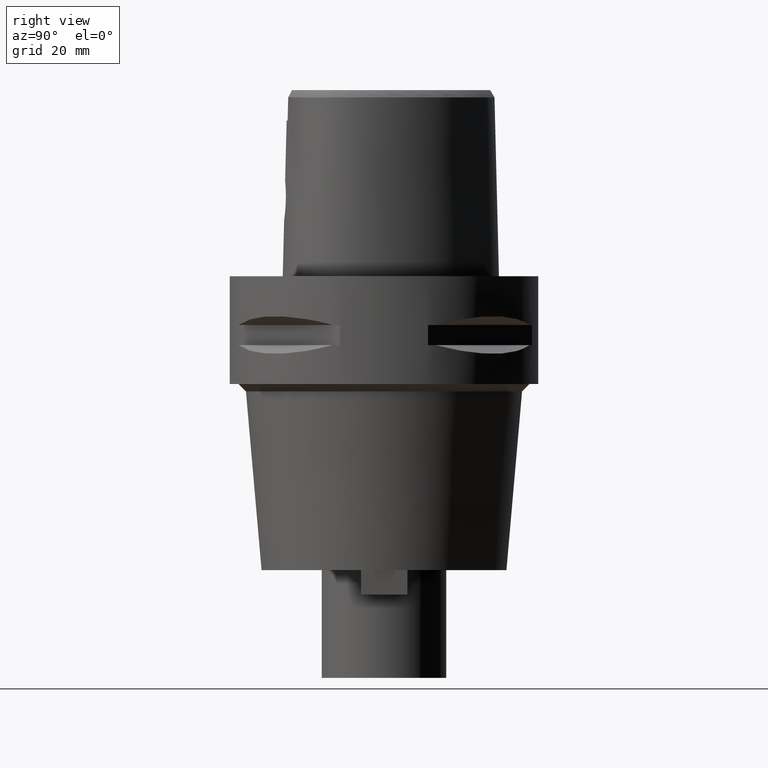
[diagram: clean part render]
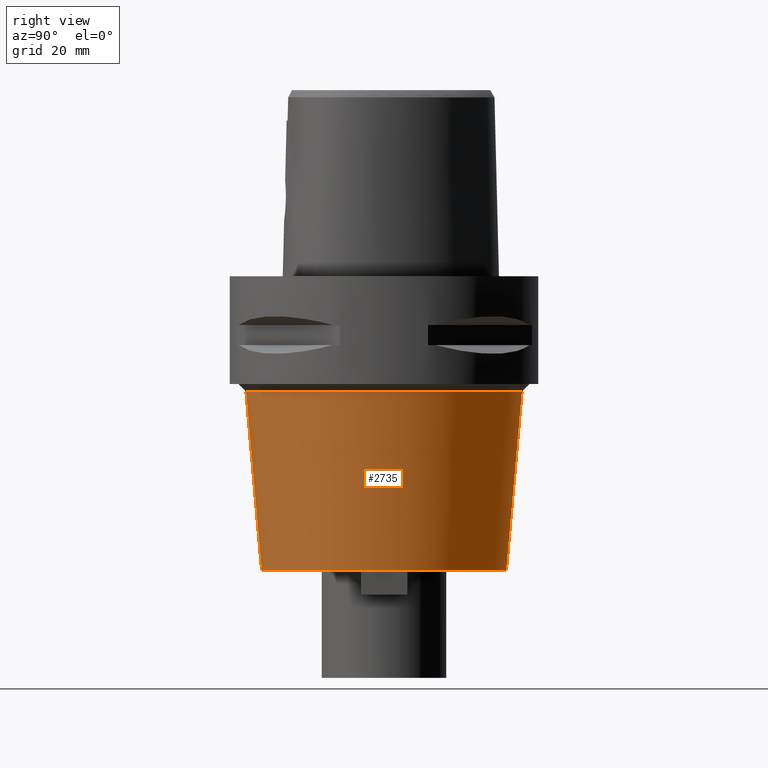
[diagram: same view with one face highlighted and labeled with its STEP entity id]
A machine part, right view. The second image highlights one B-rep face of the part: STEP entity #2735.
In plain terms, the highlighted conical surface has half-angle 5 deg.
Its self-contained STEP definition (entity closure, byte-faithful):
#567=DIRECTION('',(0.E0,-8.715574274770E-2,-9.961946980917E-1));
#568=VECTOR('',#567,3.663942407033E1);
#569=CARTESIAN_POINT('',(0.E0,2.819333621870E1,-2.35E1));
#570=LINE('',#569,#568);
#574=CARTESIAN_POINT('',(0.E0,0.E0,-2.35E1));
#575=DIRECTION('',(0.E0,0.E0,1.E0));
#576=DIRECTION('',(0.E0,-1.E0,0.E0));
#577=AXIS2_PLACEMENT_3D('',#574,#575,#576);
#582=DIRECTION('',(0.E0,8.715574274770E-2,-9.961946980917E-1));
#583=VECTOR('',#582,3.663942407033E1);
#584=CARTESIAN_POINT('',(0.E0,-2.819333621870E1,-2.35E1));
#585=LINE('',#584,#583);
#589=CARTESIAN_POINT('',(0.E0,0.E0,-6.E1));
#590=DIRECTION('',(0.E0,0.E0,1.E0));
#591=DIRECTION('',(0.E0,-1.E0,0.E0));
#592=AXIS2_PLACEMENT_3D('',#589,#590,#591);
#1770=CARTESIAN_POINT('',(0.E0,2.819333621870E1,-2.35E1));
#1771=VERTEX_POINT('',#1770);
#1772=CARTESIAN_POINT('',(0.E0,-2.819333621870E1,-2.35E1));
#1773=VERTEX_POINT('',#1772);
#1774=CARTESIAN_POINT('',(0.E0,2.5E1,-6.E1));
#1775=VERTEX_POINT('',#1774);
#1776=CARTESIAN_POINT('',(0.E0,-2.5E1,-6.E1));
#1777=VERTEX_POINT('',#1776);
#2721=CARTESIAN_POINT('',(0.E0,0.E0,-4.175E1));
#2722=DIRECTION('',(0.E0,0.E0,1.E0));
#2723=DIRECTION('',(0.E0,1.E0,0.E0));
#2724=AXIS2_PLACEMENT_3D('',#2721,#2722,#2723);
#2725=CONICAL_SURFACE('',#2724,2.659666810935E1,5.E0);
#2727=ORIENTED_EDGE('',*,*,#2726,.T.);
#2729=ORIENTED_EDGE('',*,*,#2728,.F.);
#2731=ORIENTED_EDGE('',*,*,#2730,.F.);
#2732=ORIENTED_EDGE('',*,*,#2714,.T.);
#2733=EDGE_LOOP('',(#2727,#2729,#2731,#2732));
#2734=FACE_OUTER_BOUND('',#2733,.F.);
#578=CIRCLE('',#577,2.819333621870E1);
#593=CIRCLE('',#592,2.5E1);
#2714=EDGE_CURVE('',#1773,#1771,#578,.T.);
#2726=EDGE_CURVE('',#1771,#1775,#570,.T.);
#2728=EDGE_CURVE('',#1777,#1775,#593,.T.);
#2730=EDGE_CURVE('',#1773,#1777,#585,.T.);
#2735=ADVANCED_FACE('',(#2734),#2725,.T.);